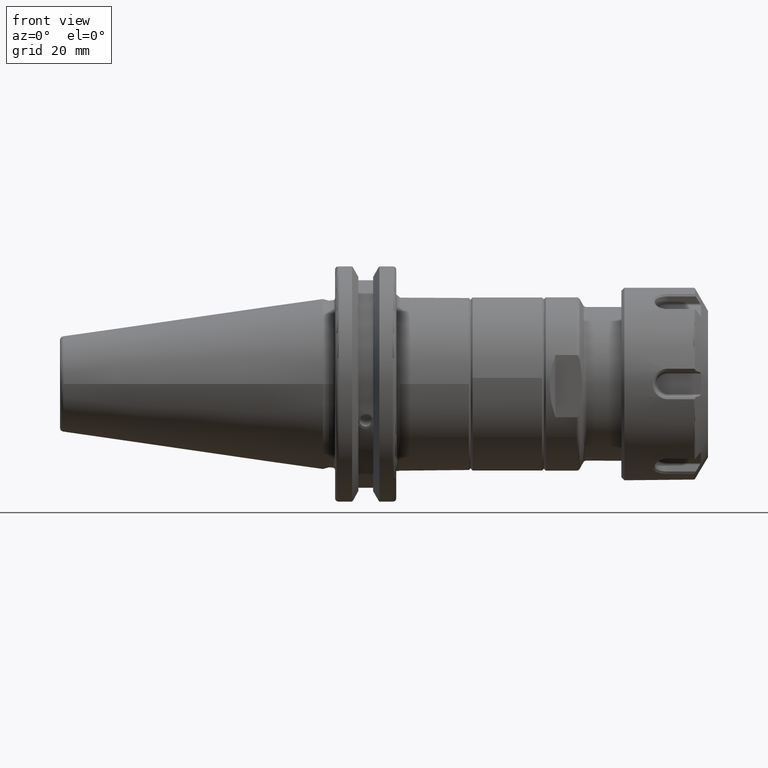
[diagram: clean part render]
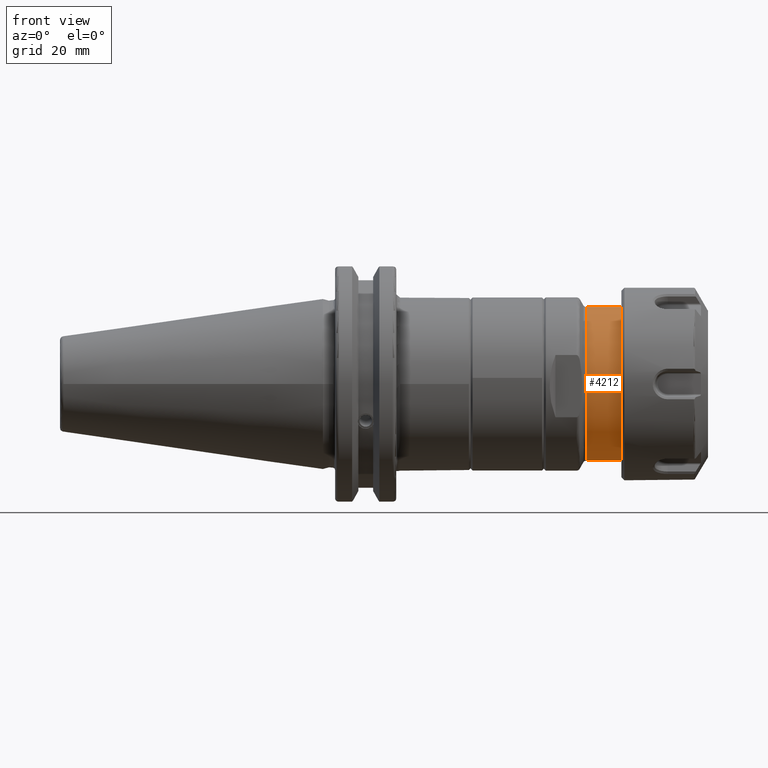
[diagram: same view with one face highlighted and labeled with its STEP entity id]
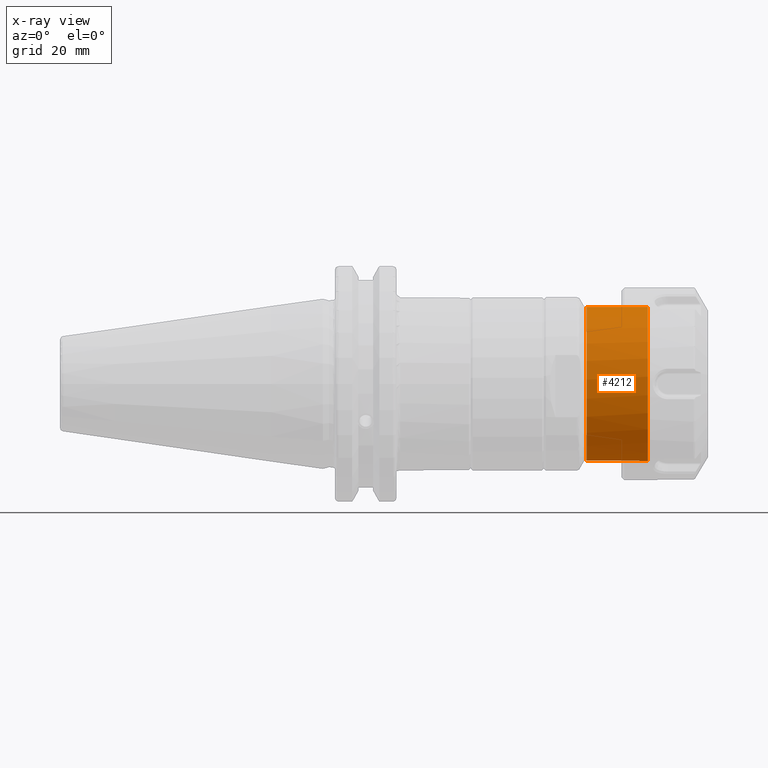
[diagram: x-ray of the same camera — body ghosted, the highlighted face saturated]
A machine part, front view. The second image highlights one B-rep face of the part: STEP entity #4212.
The next image is the same camera in x-ray: the body ghosted, the highlighted face saturated — about 0% of this face is hidden behind the body in this view.
In plain terms, the highlighted cylindrical surface (bore or boss wall) has radius 20 mm, axis along (1, -0, 0).
Its self-contained STEP definition (entity closure, byte-faithful):
#491=CYLINDRICAL_SURFACE('',#4675,20.);
#640=FACE_OUTER_BOUND('',#921,.T.);
#921=EDGE_LOOP('',(#3382,#3383,#3384,#3385,#3386,#3387));
#1192=LINE('',#7109,#1432);
#1432=VECTOR('',#5541,20.);
#1661=CIRCLE('',#4671,20.);
#1662=CIRCLE('',#4672,20.);
#1664=CIRCLE('',#4676,20.);
#1665=CIRCLE('',#4677,20.);
#1979=VERTEX_POINT('',#7099);
#1980=VERTEX_POINT('',#7101);
#1982=VERTEX_POINT('',#7108);
#1983=VERTEX_POINT('',#7110);
#2477=EDGE_CURVE('',#1979,#1980,#1661,.T.);
#2478=EDGE_CURVE('',#1980,#1979,#1662,.T.);
#2480=EDGE_CURVE('',#1980,#1982,#1192,.T.);
#2481=EDGE_CURVE('',#1983,#1982,#1664,.T.);
#2482=EDGE_CURVE('',#1982,#1983,#1665,.T.);
#3382=ORIENTED_EDGE('',*,*,#2477,.F.);
#3383=ORIENTED_EDGE('',*,*,#2478,.F.);
#3384=ORIENTED_EDGE('',*,*,#2480,.T.);
#3385=ORIENTED_EDGE('',*,*,#2481,.F.);
#3386=ORIENTED_EDGE('',*,*,#2482,.F.);
#3387=ORIENTED_EDGE('',*,*,#2480,.F.);
#4212=ADVANCED_FACE('',(#640),#491,.T.);
#4671=AXIS2_PLACEMENT_3D('',#7102,#5531,#5532);
#4672=AXIS2_PLACEMENT_3D('',#7103,#5533,#5534);
#4675=AXIS2_PLACEMENT_3D('',#7107,#5539,#5540);
#4676=AXIS2_PLACEMENT_3D('',#7111,#5542,#5543);
#4677=AXIS2_PLACEMENT_3D('',#7112,#5544,#5545);
#5531=DIRECTION('center_axis',(1.,0.,0.));
#5532=DIRECTION('ref_axis',(0.,-1.,0.));
#5533=DIRECTION('center_axis',(1.,0.,0.));
#5534=DIRECTION('ref_axis',(0.,-1.,0.));
#5539=DIRECTION('center_axis',(1.,0.,0.));
#5540=DIRECTION('ref_axis',(0.,1.,0.));
#5541=DIRECTION('',(-1.,0.,0.));
#5542=DIRECTION('center_axis',(-1.,0.,0.));
#5543=DIRECTION('ref_axis',(0.,-1.,1.83697019872103E-16));
#5544=DIRECTION('center_axis',(-1.,0.,0.));
#5545=DIRECTION('ref_axis',(0.,-1.,1.83697019872103E-16));
#7099=CARTESIAN_POINT('',(27.,20.,2.44929359829471E-15));
#7101=CARTESIAN_POINT('',(27.,-20.,-2.44929359829471E-15));
#7102=CARTESIAN_POINT('Origin',(27.,0.,0.));
#7103=CARTESIAN_POINT('Origin',(27.,0.,0.));
#7107=CARTESIAN_POINT('Origin',(19.5,0.,0.));
#7108=CARTESIAN_POINT('',(11.0773502691896,-20.,-2.44929359829471E-15));
#7109=CARTESIAN_POINT('',(19.5,-20.,-2.44929359829471E-15));
#7110=CARTESIAN_POINT('',(11.0773502691896,-2.44929359829471E-15,20.));
#7111=CARTESIAN_POINT('Origin',(11.0773502691896,0.,0.));
#7112=CARTESIAN_POINT('Origin',(11.0773502691896,0.,0.));